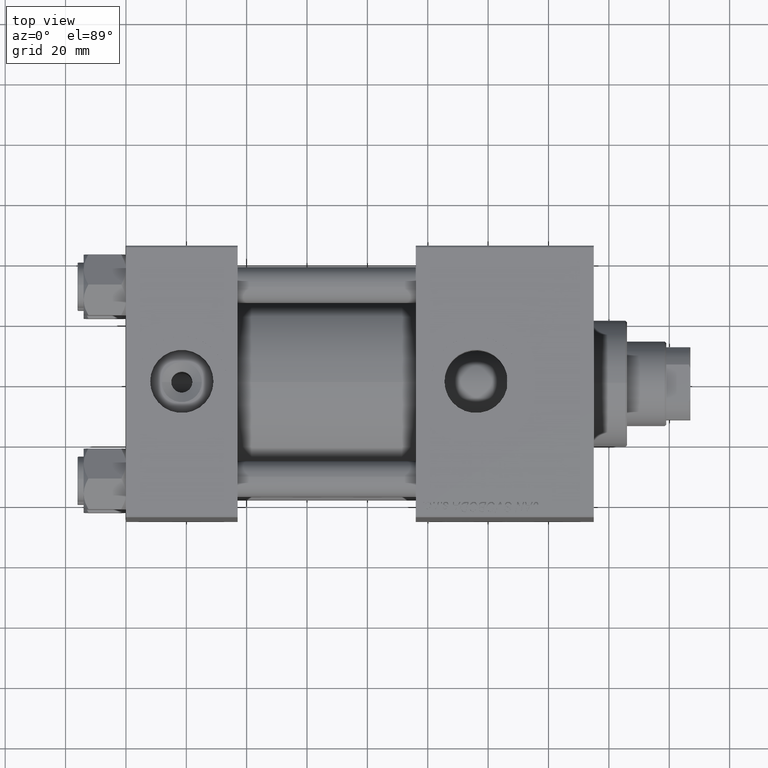
[diagram: clean part render]
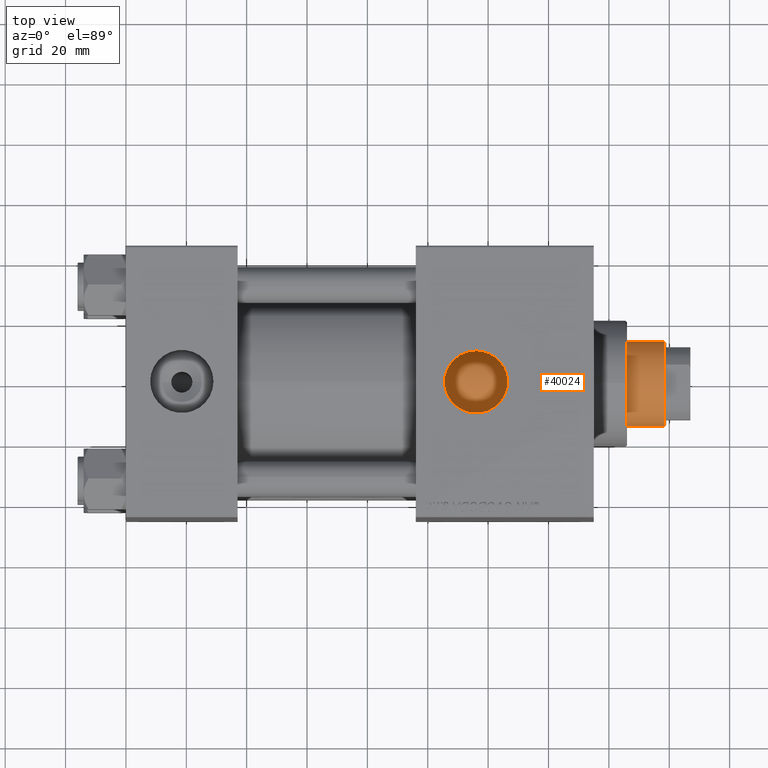
[diagram: same view with one face highlighted and labeled with its STEP entity id]
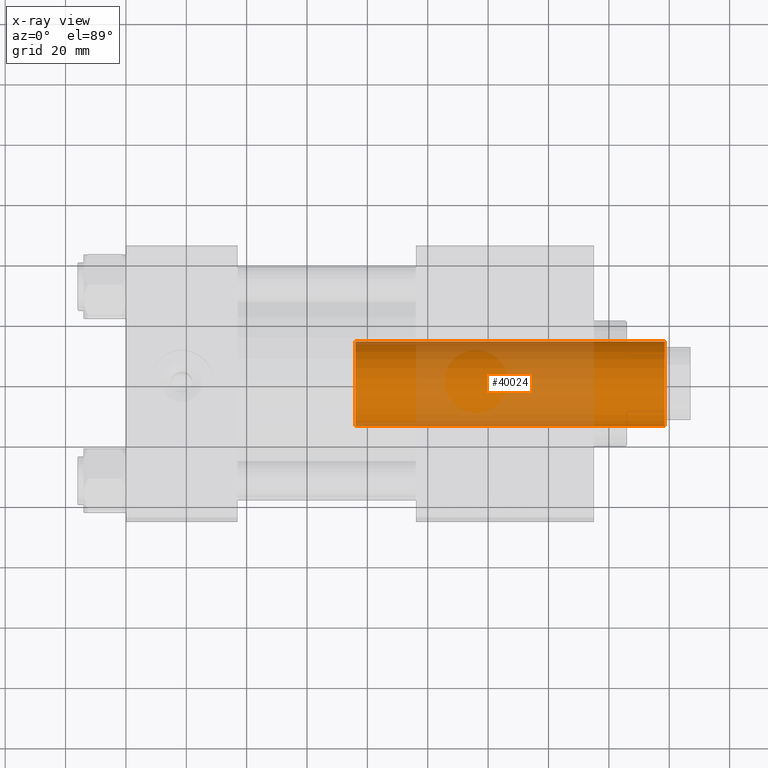
[diagram: x-ray of the same camera — body ghosted, the highlighted face saturated]
A machine part, top view. The second image highlights one B-rep face of the part: STEP entity #40024.
The next image is the same camera in x-ray: the body ghosted, the highlighted face saturated — about 47% of this face is hidden behind the body in this view.
In plain terms, the highlighted cylindrical surface (partial cylindrical patch) has radius 14 mm, axis along (-1, 0, 0).
Its self-contained STEP definition (entity closure, byte-faithful):
#448 = CARTESIAN_POINT ( 'NONE',  ( 0.000000000000000000, 0.000000000000000000, 39.00000000000000000 ) ) ;
#2860 = DIRECTION ( 'NONE',  ( -1.000000000000000000, 0.000000000000000000, 0.000000000000000000 ) ) ;
#3743 = EDGE_CURVE ( 'NONE', #43413, #9756, #42950, .T. ) ;
#4766 = AXIS2_PLACEMENT_3D ( 'NONE', #10808, #22357, #26824 ) ;
#7553 = DIRECTION ( 'NONE',  ( 1.000000000000000000, 0.000000000000000000, 0.000000000000000000 ) ) ;
#7650 = CARTESIAN_POINT ( 'NONE',  ( 14.00000000000000178, 1.714505518806294835E-15, 39.00000000000000000 ) ) ;
#8378 = VERTEX_POINT ( 'NONE', #16741 ) ;
#9756 = VERTEX_POINT ( 'NONE', #7650 ) ;
#10501 = FACE_OUTER_BOUND ( 'NONE', #19816, .T. ) ;
#10808 = CARTESIAN_POINT ( 'NONE',  ( 0.000000000000000000, 0.000000000000000000, 141.5000000000000000 ) ) ;
#10913 = LINE ( 'NONE', #39020, #30166 ) ;
#16741 = CARTESIAN_POINT ( 'NONE',  ( -14.00000000000000178, 0.000000000000000000, 141.5000000000000000 ) ) ;
#17361 = CIRCLE ( 'NONE', #4766, 14.00000000000000178 ) ;
#17973 = EDGE_CURVE ( 'NONE', #18674, #8378, #17361, .T. ) ;
#18674 = VERTEX_POINT ( 'NONE', #27724 ) ;
#19053 = DIRECTION ( 'NONE',  ( -0.000000000000000000, -0.000000000000000000, -1.000000000000000000 ) ) ;
#19816 = EDGE_LOOP ( 'NONE', ( #47812, #39160, #50300, #25770 ) ) ;
#22357 = DIRECTION ( 'NONE',  ( 0.000000000000000000, 0.000000000000000000, -1.000000000000000000 ) ) ;
#25770 = ORIENTED_EDGE ( 'NONE', *, *, #3743, .T. ) ;
#26824 = DIRECTION ( 'NONE',  ( 1.000000000000000000, 0.000000000000000000, 0.000000000000000000 ) ) ;
#26860 = EDGE_CURVE ( 'NONE', #8378, #43413, #41834, .T. ) ;
#27724 = CARTESIAN_POINT ( 'NONE',  ( 14.00000000000000178, 1.714505518806294835E-15, 141.5000000000000000 ) ) ;
#28673 = AXIS2_PLACEMENT_3D ( 'NONE', #448, #28825, #7553 ) ;
#28825 = DIRECTION ( 'NONE',  ( 0.000000000000000000, 0.000000000000000000, 1.000000000000000000 ) ) ;
#30015 = CARTESIAN_POINT ( 'NONE',  ( -14.00000000000000178, 0.000000000000000000, 142.0000000000000000 ) ) ;
#30166 = VECTOR ( 'NONE', #19053, 1000.000000000000000 ) ;
#30976 = CYLINDRICAL_SURFACE ( 'NONE', #50963, 14.00000000000000178 ) ;
#39020 = CARTESIAN_POINT ( 'NONE',  ( 14.00000000000000178, 1.714505518806294835E-15, 142.0000000000000000 ) ) ;
#39160 = ORIENTED_EDGE ( 'NONE', *, *, #17973, .T. ) ;
#40024 = ADVANCED_FACE ( 'NONE', ( #10501 ), #30976, .T. ) ;
#41834 = LINE ( 'NONE', #30015, #50628 ) ;
#42079 = DIRECTION ( 'NONE',  ( -0.000000000000000000, -0.000000000000000000, -1.000000000000000000 ) ) ;
#42950 = CIRCLE ( 'NONE', #28673, 14.00000000000000178 ) ;
#43413 = VERTEX_POINT ( 'NONE', #45662 ) ;
#45555 = EDGE_CURVE ( 'NONE', #18674, #9756, #10913, .T. ) ;
#45662 = CARTESIAN_POINT ( 'NONE',  ( -14.00000000000000178, 0.000000000000000000, 39.00000000000000000 ) ) ;
#46737 = CARTESIAN_POINT ( 'NONE',  ( 0.000000000000000000, 0.000000000000000000, 142.0000000000000000 ) ) ;
#46998 = DIRECTION ( 'NONE',  ( -0.000000000000000000, -0.000000000000000000, -1.000000000000000000 ) ) ;
#47812 = ORIENTED_EDGE ( 'NONE', *, *, #45555, .F. ) ;
#50300 = ORIENTED_EDGE ( 'NONE', *, *, #26860, .T. ) ;
#50628 = VECTOR ( 'NONE', #42079, 1000.000000000000000 ) ;
#50963 = AXIS2_PLACEMENT_3D ( 'NONE', #46737, #46998, #2860 ) ;